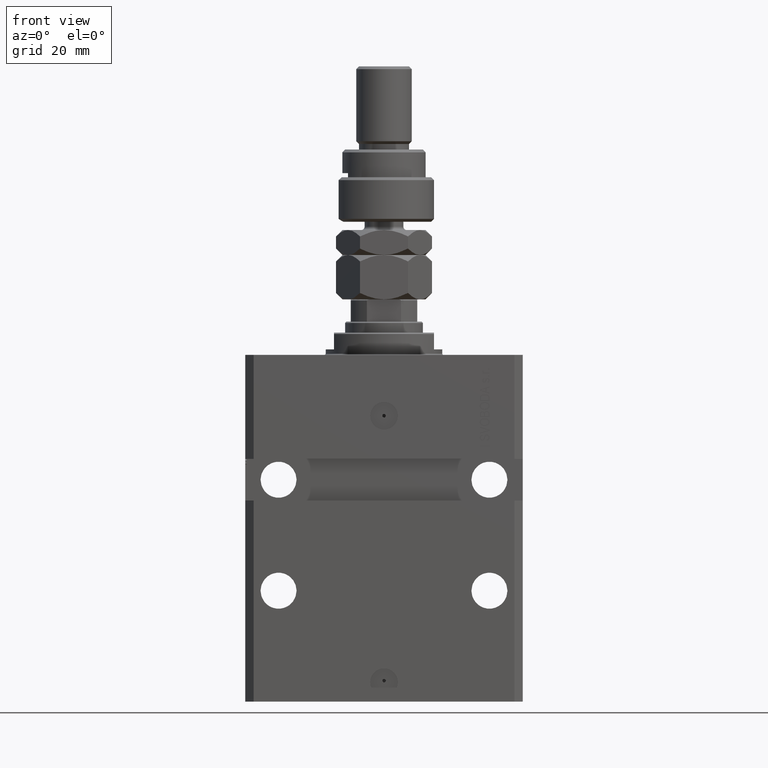
[diagram: clean part render]
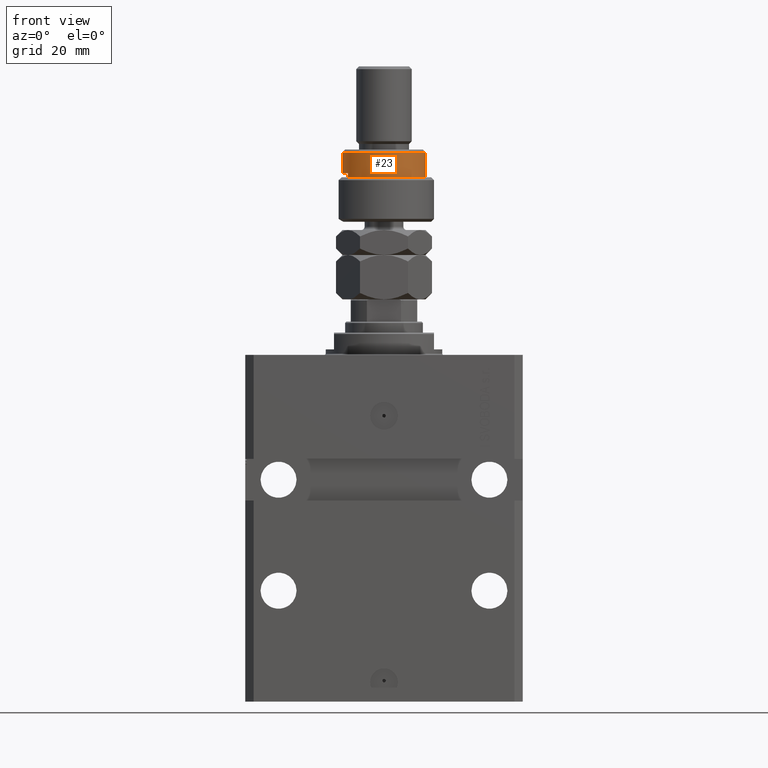
[diagram: same view with one face highlighted and labeled with its STEP entity id]
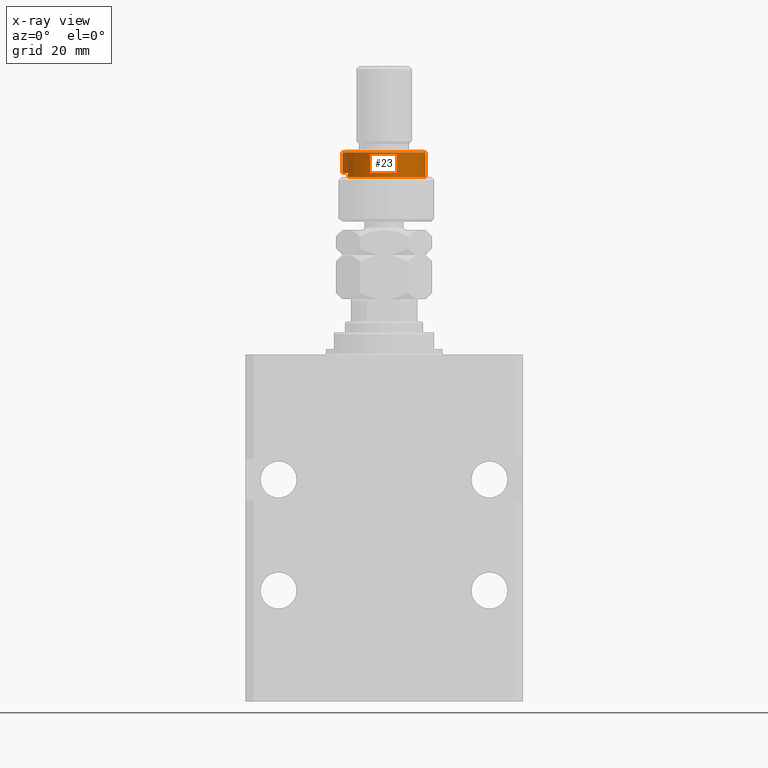
[diagram: x-ray of the same camera — body ghosted, the highlighted face saturated]
A machine part, front view. The second image highlights one B-rep face of the part: STEP entity #23.
The next image is the same camera in x-ray: the body ghosted, the highlighted face saturated — about 0% of this face is hidden behind the body in this view.
In plain terms, the highlighted cylindrical surface (partial cylindrical patch) has radius 15 mm, axis along (-0, -0, -1).
Its self-contained STEP definition (entity closure, byte-faithful):
#23 = ADVANCED_FACE ( 'NONE', ( #938 ), #48636, .T. ) ;
#638 = EDGE_CURVE ( 'NONE', #21166, #8842, #44729, .T. ) ;
#938 = FACE_OUTER_BOUND ( 'NONE', #26181, .T. ) ;
#2309 = AXIS2_PLACEMENT_3D ( 'NONE', #50244, #2796, #21108 ) ;
#2796 = DIRECTION ( 'NONE',  ( 0.000000000000000000, 0.000000000000000000, -1.000000000000000000 ) ) ;
#3488 = CARTESIAN_POINT ( 'NONE',  ( 15.00000000000000000, 1.836970198721029589E-15, 16.00000000000000000 ) ) ;
#4586 = ORIENTED_EDGE ( 'NONE', *, *, #42903, .T. ) ;
#6465 = DIRECTION ( 'NONE',  ( -0.000000000000000000, -0.000000000000000000, -1.000000000000000000 ) ) ;
#6588 = CARTESIAN_POINT ( 'NONE',  ( -12.99038105676658006, -7.500000000000000000, 17.50000000000000000 ) ) ;
#8459 = EDGE_CURVE ( 'NONE', #41106, #33844, #38031, .T. ) ;
#8842 = VERTEX_POINT ( 'NONE', #46066 ) ;
#9284 = ORIENTED_EDGE ( 'NONE', *, *, #638, .F. ) ;
#11172 = EDGE_CURVE ( 'NONE', #36761, #33844, #25153, .T. ) ;
#11536 = DIRECTION ( 'NONE',  ( 1.000000000000000000, 0.000000000000000000, 0.000000000000000000 ) ) ;
#14787 = ORIENTED_EDGE ( 'NONE', *, *, #8459, .F. ) ;
#15694 = LINE ( 'NONE', #39698, #16099 ) ;
#16099 = VECTOR ( 'NONE', #47531, 1000.000000000000000 ) ;
#17661 = EDGE_CURVE ( 'NONE', #32871, #8842, #15694, .T. ) ;
#17990 = VECTOR ( 'NONE', #32520, 1000.000000000000000 ) ;
#20525 = LINE ( 'NONE', #36452, #17990 ) ;
#21108 = DIRECTION ( 'NONE',  ( -1.000000000000000000, 0.000000000000000000, 0.000000000000000000 ) ) ;
#21166 = VERTEX_POINT ( 'NONE', #6588 ) ;
#24627 = DIRECTION ( 'NONE',  ( -1.000000000000000000, 0.000000000000000000, 0.000000000000000000 ) ) ;
#25153 = CIRCLE ( 'NONE', #35994, 15.00000000000000000 ) ;
#25459 = ORIENTED_EDGE ( 'NONE', *, *, #17661, .T. ) ;
#26181 = EDGE_LOOP ( 'NONE', ( #14787, #49526, #25459, #9284, #4586, #44118 ) ) ;
#27692 = CARTESIAN_POINT ( 'NONE',  ( 0.000000000000000000, 0.000000000000000000, 16.00000000000000000 ) ) ;
#28804 = DIRECTION ( 'NONE',  ( -0.000000000000000000, -0.000000000000000000, -1.000000000000000000 ) ) ;
#29057 = CARTESIAN_POINT ( 'NONE',  ( 0.000000000000000000, 0.000000000000000000, 26.00000000000000355 ) ) ;
#29194 = DIRECTION ( 'NONE',  ( 0.000000000000000000, 0.000000000000000000, -1.000000000000000000 ) ) ;
#31215 = AXIS2_PLACEMENT_3D ( 'NONE', #39990, #29194, #31378 ) ;
#31378 = DIRECTION ( 'NONE',  ( 1.000000000000000000, 0.000000000000000000, 0.000000000000000000 ) ) ;
#32197 = AXIS2_PLACEMENT_3D ( 'NONE', #29057, #28804, #24627 ) ;
#32520 = DIRECTION ( 'NONE',  ( -0.000000000000000000, -0.000000000000000000, -1.000000000000000000 ) ) ;
#32871 = VERTEX_POINT ( 'NONE', #37619 ) ;
#33844 = VERTEX_POINT ( 'NONE', #3488 ) ;
#35793 = DIRECTION ( 'NONE',  ( 0.000000000000000000, 0.000000000000000000, 1.000000000000000000 ) ) ;
#35994 = AXIS2_PLACEMENT_3D ( 'NONE', #27692, #35793, #11536 ) ;
#36219 = CIRCLE ( 'NONE', #31215, 15.00000000000000000 ) ;
#36452 = CARTESIAN_POINT ( 'NONE',  ( -12.99038105676658006, -7.500000000000000000, 26.00000000000000355 ) ) ;
#36761 = VERTEX_POINT ( 'NONE', #50101 ) ;
#37619 = CARTESIAN_POINT ( 'NONE',  ( -15.00000000000000000, 0.000000000000000000, 24.99999999999997868 ) ) ;
#38031 = LINE ( 'NONE', #45352, #42556 ) ;
#39698 = CARTESIAN_POINT ( 'NONE',  ( -15.00000000000000000, 0.000000000000000000, 26.00000000000000355 ) ) ;
#39990 = CARTESIAN_POINT ( 'NONE',  ( 0.000000000000000000, 0.000000000000000000, 24.99999999999997868 ) ) ;
#41106 = VERTEX_POINT ( 'NONE', #49081 ) ;
#42556 = VECTOR ( 'NONE', #6465, 1000.000000000000000 ) ;
#42903 = EDGE_CURVE ( 'NONE', #21166, #36761, #20525, .T. ) ;
#43631 = EDGE_CURVE ( 'NONE', #41106, #32871, #36219, .T. ) ;
#44118 = ORIENTED_EDGE ( 'NONE', *, *, #11172, .T. ) ;
#44729 = CIRCLE ( 'NONE', #2309, 15.00000000000000000 ) ;
#45352 = CARTESIAN_POINT ( 'NONE',  ( 15.00000000000000000, 1.836970198721029589E-15, 26.00000000000000355 ) ) ;
#46066 = CARTESIAN_POINT ( 'NONE',  ( -15.00000000000000000, 0.000000000000000000, 17.50000000000000000 ) ) ;
#47531 = DIRECTION ( 'NONE',  ( -0.000000000000000000, -0.000000000000000000, -1.000000000000000000 ) ) ;
#48636 = CYLINDRICAL_SURFACE ( 'NONE', #32197, 15.00000000000000000 ) ;
#49081 = CARTESIAN_POINT ( 'NONE',  ( 15.00000000000000000, 1.836970198721029589E-15, 24.99999999999997868 ) ) ;
#49526 = ORIENTED_EDGE ( 'NONE', *, *, #43631, .T. ) ;
#50101 = CARTESIAN_POINT ( 'NONE',  ( -12.99038105676658006, -7.500000000000000000, 16.00000000000000000 ) ) ;
#50244 = CARTESIAN_POINT ( 'NONE',  ( 0.000000000000000000, 0.000000000000000000, 17.50000000000000000 ) ) ;